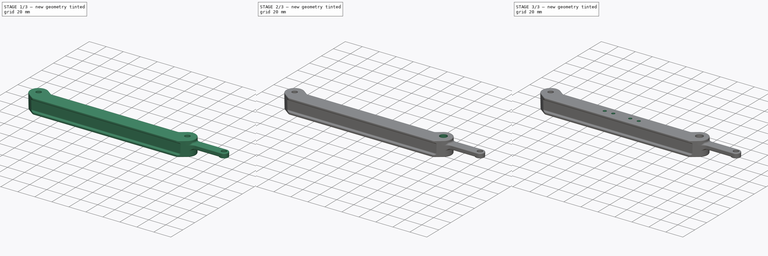
[diagram: build sequence overview — one tinted view per stage of 3, left to right]
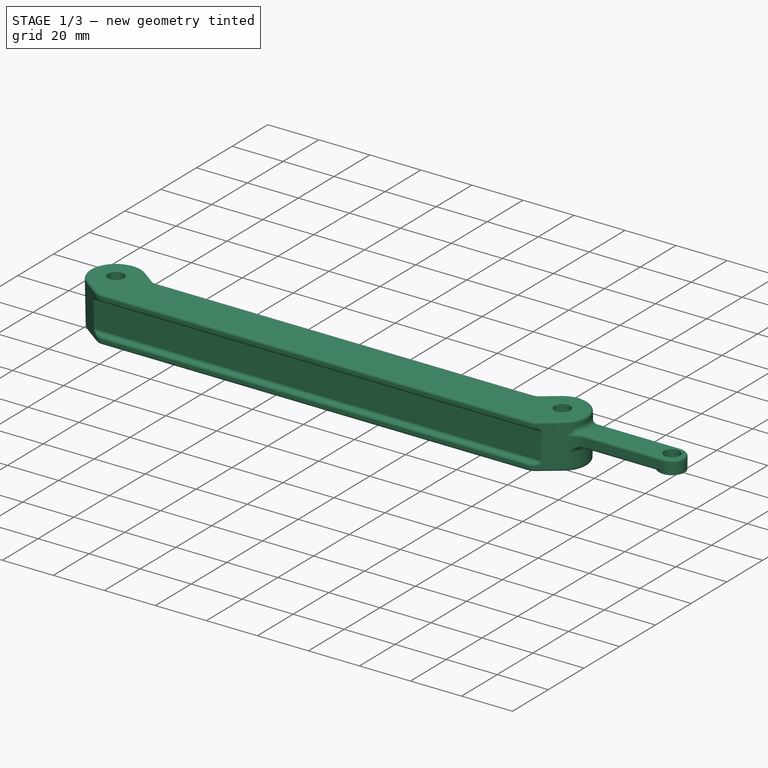
[diagram: stage 1 of 3 — iso view after this stage's code; geometry added in this stage tinted green]
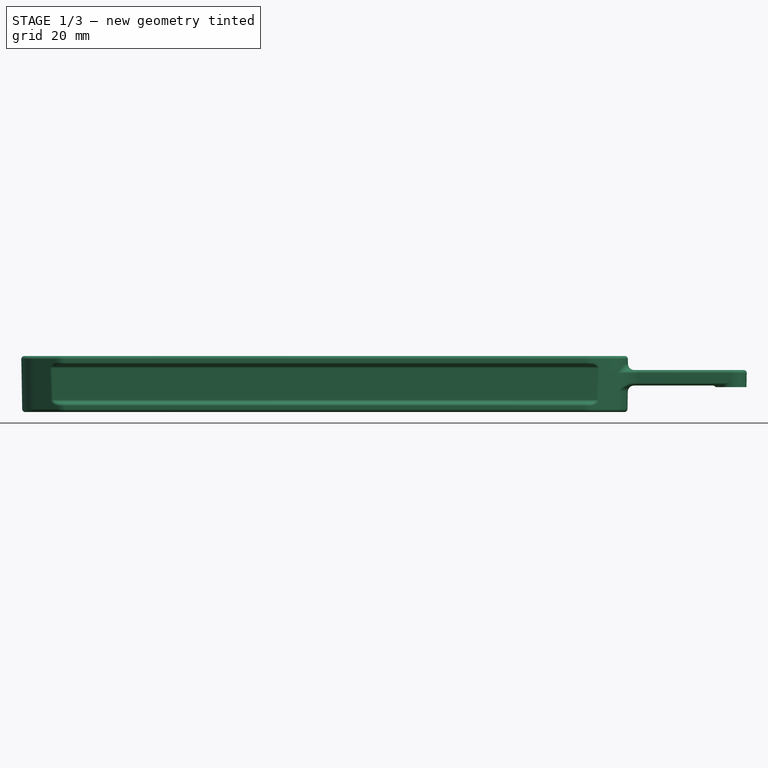
[diagram: stage 1 of 3 — front view after this stage's code; geometry added in this stage tinted green]
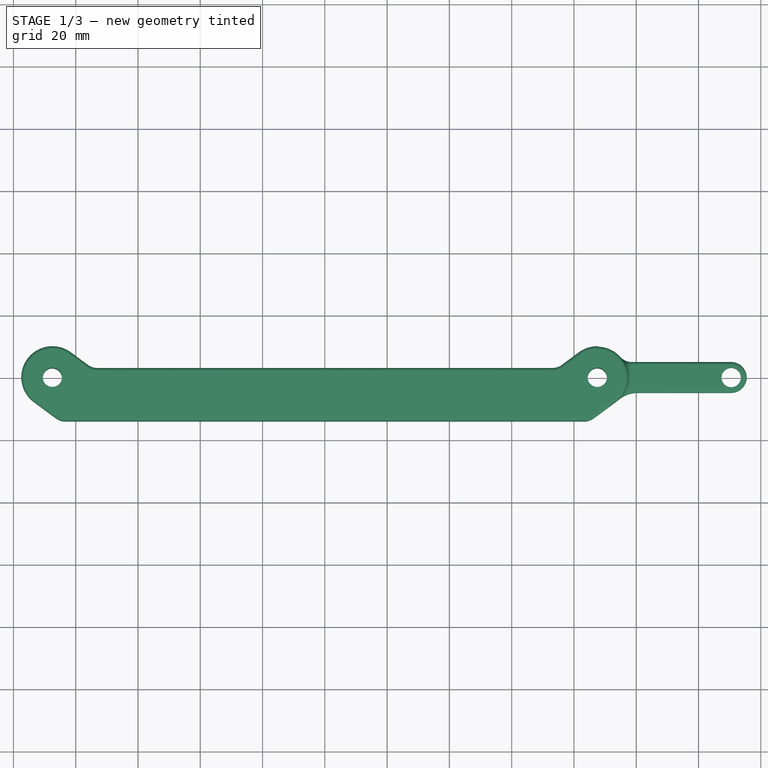
[diagram: stage 1 of 3 — top view after this stage's code; geometry added in this stage tinted green]
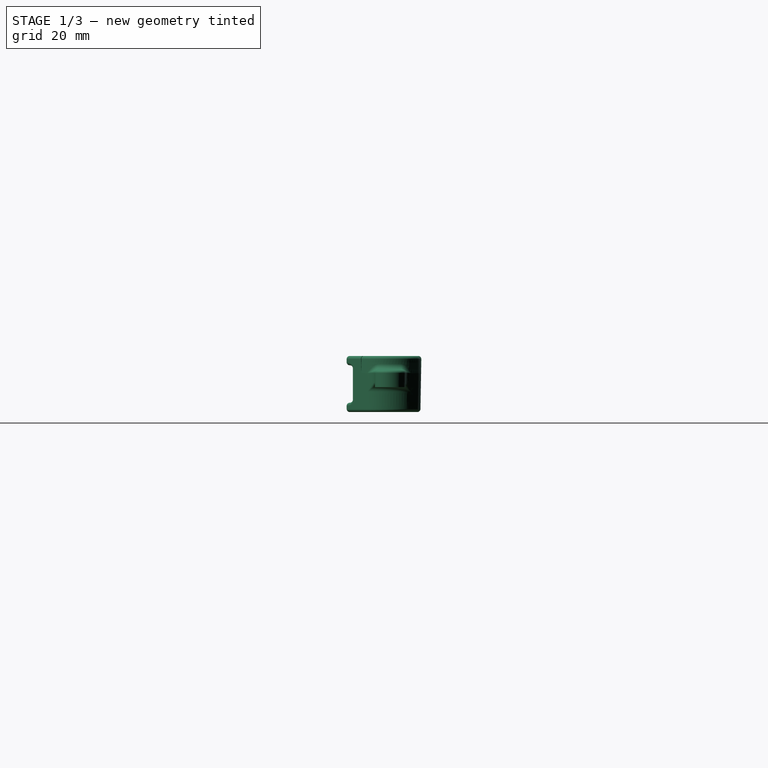
[diagram: stage 1 of 3 — right view after this stage's code; geometry added in this stage tinted green]
FCSTD DOCUMENT  (FreeCAD 0.21R33668 +26 (Git))
Label: link3_1
License: All rights reserved
LicenseURL: https://en.wikipedia.org/wiki/All_rights_reserved
objects: Sketcher::SketchObject×4, PartDesign::Pocket×4, Part::Feature×1, PartDesign::FeatureBase×1, PartDesign::Body×1
note: 15 computed .brp shape members not serialized (recipe doc carries the construction recipe); baked Part::Feature solids carry a one-line shape summary decoded from their .brp

FEATURE [Part::Feature] Part__Feature  label="2205006900-20210110001_4___"
  shape: bbox 234.5 x 27.46 x 18.24 mm, 160 faces (baked)
FEATURE [PartDesign::FeatureBase] BaseFeature
  BaseFeature = -> Part__Feature
FEATURE [Sketcher::SketchObject] Sketch
  ExternalGeometry = -> [BaseFeature]
  FullyConstrained = false
  MapMode = 5
  Placement = pos=(0,0,9) rot=(0,0,1;0rad)
  Support = -> [BaseFeature]
  sketch-geometry (3):
    g0: Circle CenterX=-87.5 CenterY=0 CenterZ=0 NormalX=0 NormalY=0 NormalZ=1 AngleXU=0 Radius=3.075
    g1: Circle CenterX=87.5 CenterY=0 CenterZ=0 NormalX=0 NormalY=0 NormalZ=1 AngleXU=0 Radius=3.1
    g2: Circle CenterX=130.5 CenterY=-4.5e-05 CenterZ=0 NormalX=0 NormalY=0 NormalZ=1 AngleXU=0 Radius=3.1
  constraints (5):
    c: Coincident(g0,g-3)
    c: Diameter(g0) = 6.15
    c: Coincident(g1,g-4)
    c: Diameter(g1) = 6.2
    c: Diameter(g2) = 6.2
FEATURE [PartDesign::Pocket] Pocket
  BaseFeature = -> BaseFeature
  Direction = (0,0,-1)
  Length = 5
  Length2 = 5
  Profile = -> Sketch
  ReferenceAxis = -> Sketch [N_Axis]
  Type = 1
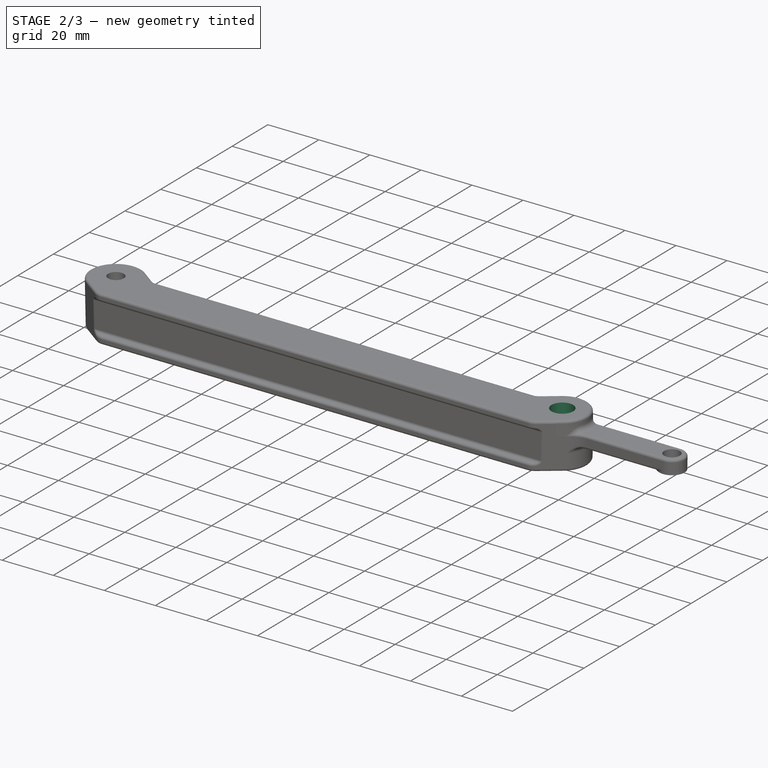
[diagram: stage 2 of 3 — iso view after this stage's code; geometry added in this stage tinted green]
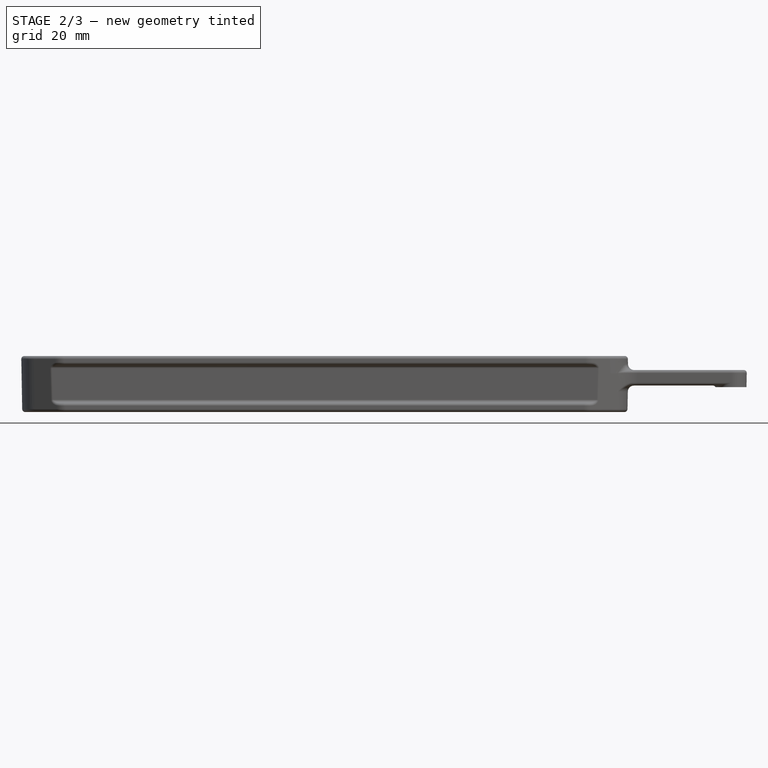
[diagram: stage 2 of 3 — front view after this stage's code; geometry added in this stage tinted green]
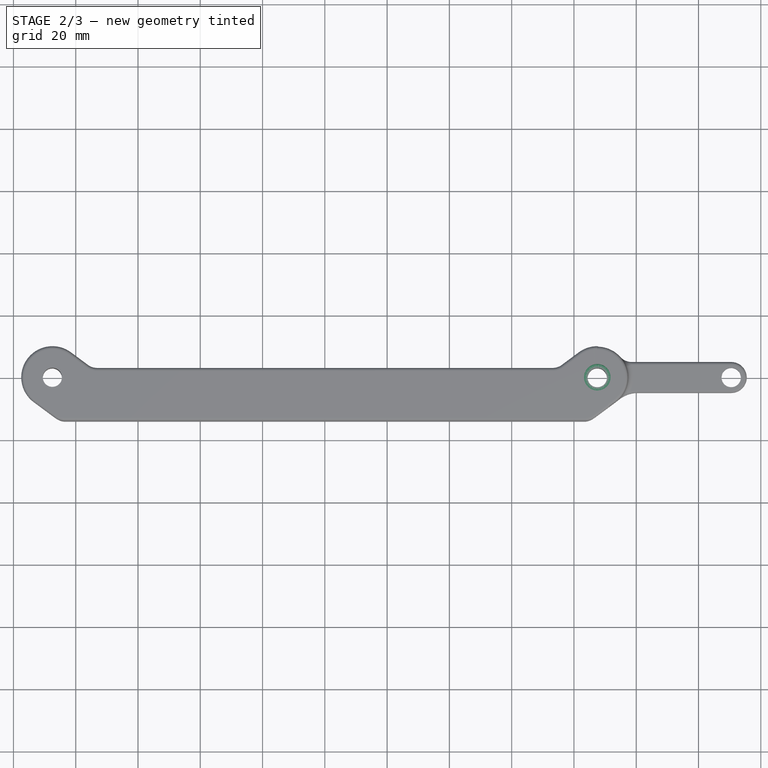
[diagram: stage 2 of 3 — top view after this stage's code; geometry added in this stage tinted green]
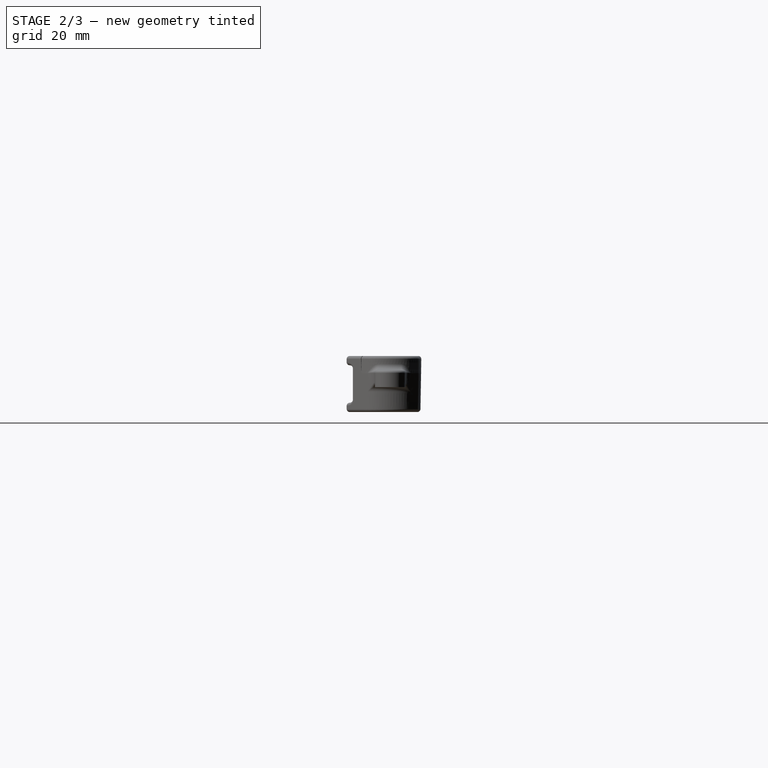
[diagram: stage 2 of 3 — right view after this stage's code; geometry added in this stage tinted green]
FEATURE [Sketcher::SketchObject] Sketch001
  ExternalGeometry = -> [Pocket]
  FullyConstrained = true
  MapMode = 5
  Placement = pos=(0,0,9) rot=(0,0,1;0rad)
  Support = -> [Pocket]
  sketch-geometry (1):
    g0: Circle CenterX=87.5 CenterY=0 CenterZ=0 NormalX=0 NormalY=0 NormalZ=1 AngleXU=0 Radius=4.25
  constraints (2):
    c: Coincident(g0,g-3)
    c: Diameter(g0) = 8.5
FEATURE [PartDesign::Pocket] Pocket001
  BaseFeature = -> Pocket
  Direction = (0,0,-1)
  Length = 5
  Length2 = 5
  Profile = -> Sketch001
  ReferenceAxis = -> Sketch001 [N_Axis]
  Type = 0
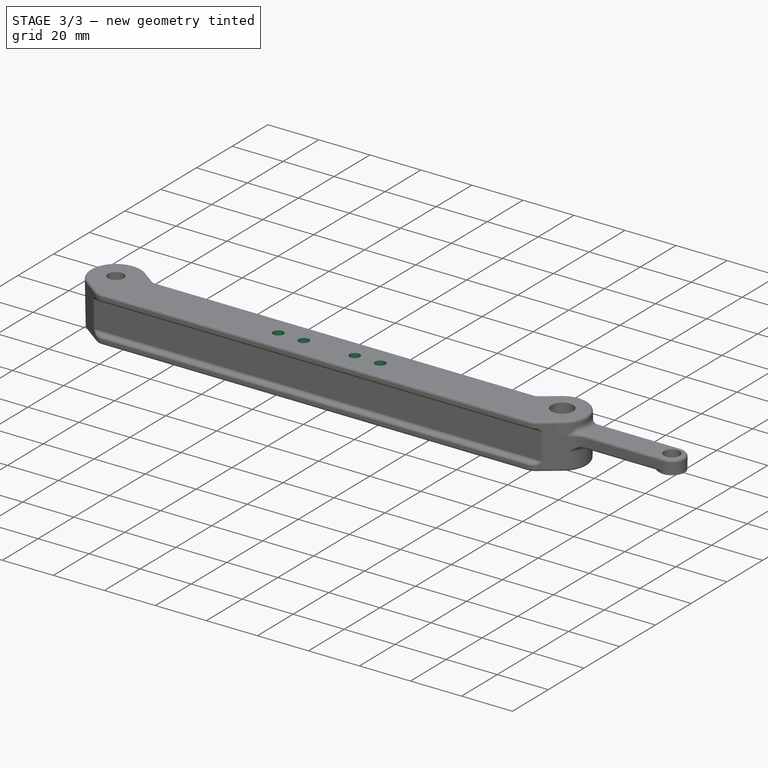
[diagram: stage 3 of 3 — iso view after this stage's code; geometry added in this stage tinted green]
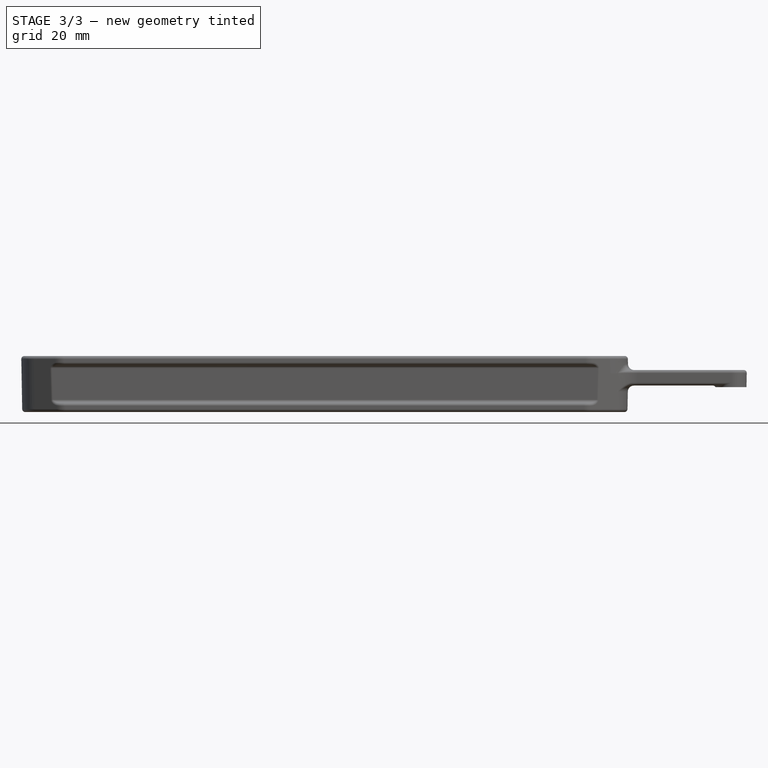
[diagram: stage 3 of 3 — front view after this stage's code; geometry added in this stage tinted green]
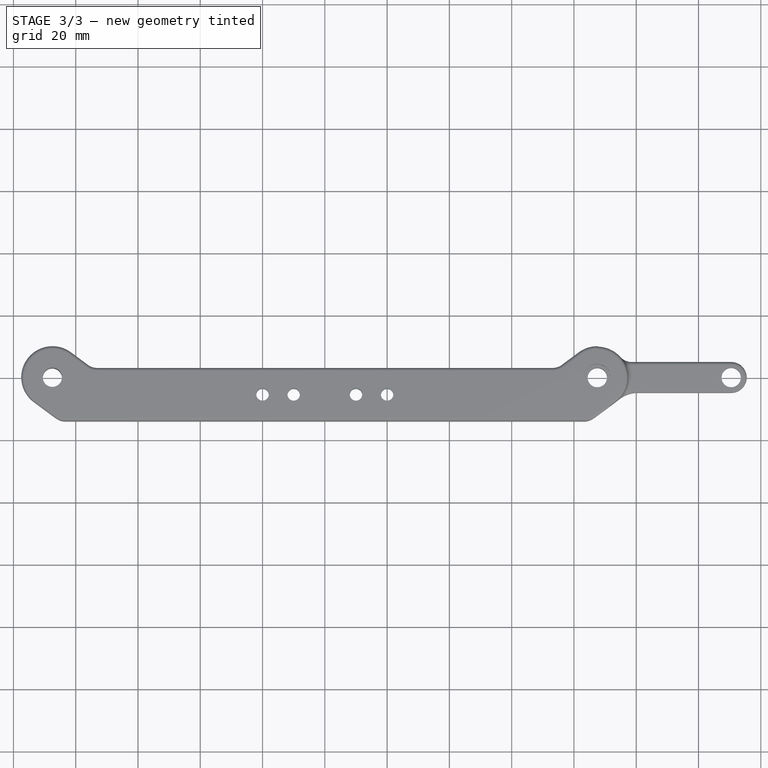
[diagram: stage 3 of 3 — top view after this stage's code; geometry added in this stage tinted green]
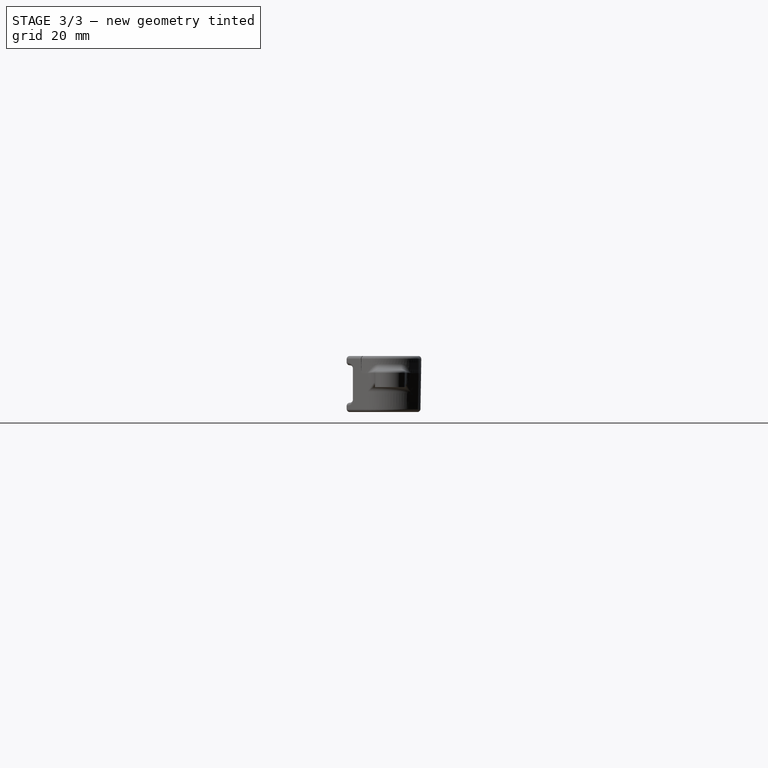
[diagram: stage 3 of 3 — right view after this stage's code; geometry added in this stage tinted green]
FEATURE [Sketcher::SketchObject] Sketch002
  ExternalGeometry = -> [Pocket001]
  FullyConstrained = true
  MapMode = 5
  Placement = pos=(0,0,-9) rot=(1,0,0;3.14159rad)
  Support = -> [Pocket001]
  sketch-geometry (1):
    g0: Circle CenterX=87.5 CenterY=0 CenterZ=0 NormalX=0 NormalY=0 NormalZ=1 AngleXU=0 Radius=4.25
  constraints (2):
    c: Coincident(g0,g-3)
    c: Diameter(g0) = 8.5
FEATURE [PartDesign::Pocket] Pocket002
  BaseFeature = -> Pocket001
  Direction = (0,0,1)
  Length = 5
  Length2 = 5
  Profile = -> Sketch002
  ReferenceAxis = -> Sketch002 [N_Axis]
  Type = 0
FEATURE [Sketcher::SketchObject] Sketch003
  ExternalGeometry = -> [Pocket002]
  FullyConstrained = true
  MapMode = 5
  Placement = pos=(0,0,9) rot=(0,0,1;0rad)
  Support = -> [Pocket002]
  sketch-geometry (4):
    g0: Circle CenterX=10 CenterY=-5.5 CenterZ=0 NormalX=0 NormalY=0 NormalZ=1 AngleXU=0 Radius=2
    g1: Circle CenterX=20 CenterY=-5.5 CenterZ=0 NormalX=0 NormalY=0 NormalZ=1 AngleXU=0 Radius=2
    g2: Circle CenterX=-10 CenterY=-5.5 CenterZ=0 NormalX=0 NormalY=0 NormalZ=1 AngleXU=0 Radius=2
    g3: Circle CenterX=-20 CenterY=-5.5 CenterZ=0 NormalX=0 NormalY=0 NormalZ=1 AngleXU=0 Radius=2
  constraints (13):
    c: DistanceY(g-4,g-3) = 15
    c: Equal(g1,g0)
    c: Equal(g0,g2)
    c: Equal(g2,g3)
    c: Horizontal(g3,g2)
    c: Horizontal(g2,g0)
    c: Horizontal(g0,g1)
    c: Diameter(g1) = 4
    c: DistanceX(g-1,g0) = 10
    c: DistanceX(g-1,g1) = 20
    c: DistanceX(g2,g-1) = 10
    c: DistanceX(g3,g-1) = 20
    c: DistanceY(g0,g-3) = 7.5
FEATURE [PartDesign::Pocket] Pocket003
  BaseFeature = -> Pocket002
  Direction = (0,0,-1)
  Length = 5
  Length2 = 5
  Profile = -> Sketch003
  ReferenceAxis = -> Sketch003 [N_Axis]
  Type = 1
FEATURE [PartDesign::Body] Body
  BaseFeature = -> Part__Feature
  Group = -> [BaseFeature,Sketch,Pocket,Sketch001,Pocket001,Sketch002,Pocket002,Sketch003,Pocket003]
  Origin = -> Origin
  Tip = -> Pocket003
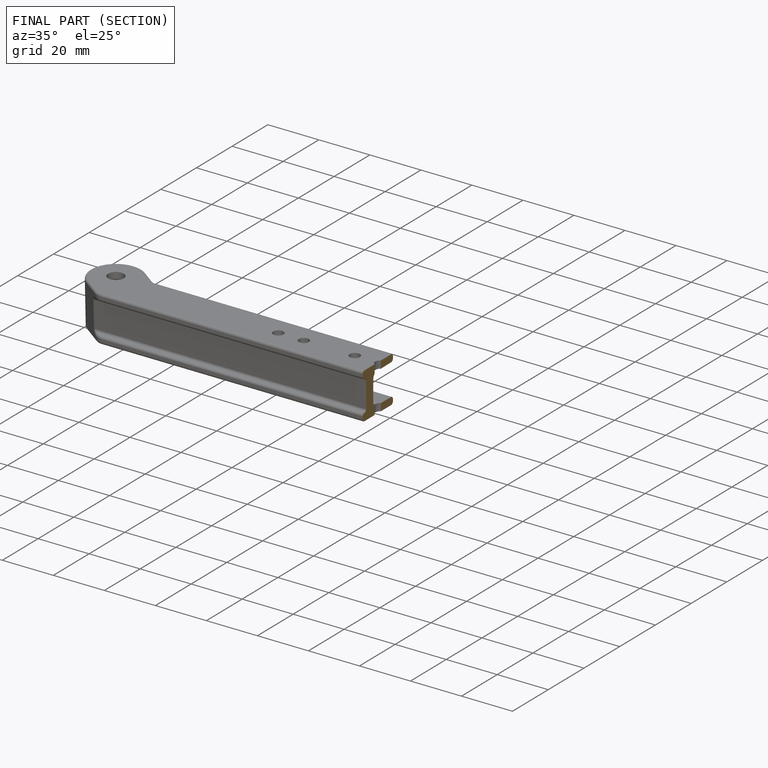
[diagram: finished part — half-section view (interior)]
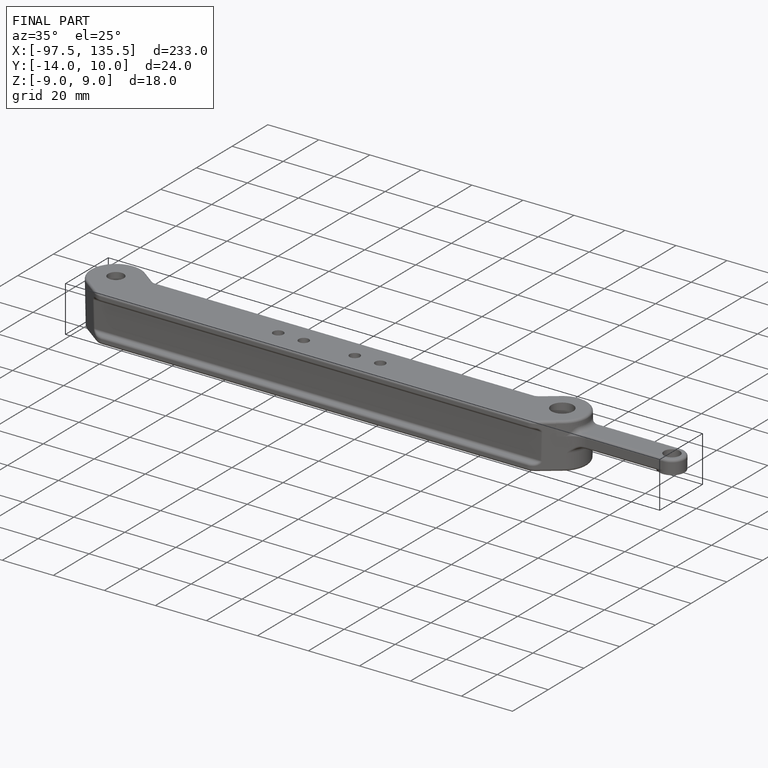
[diagram: finished part — iso view with bounding-box wireframe]
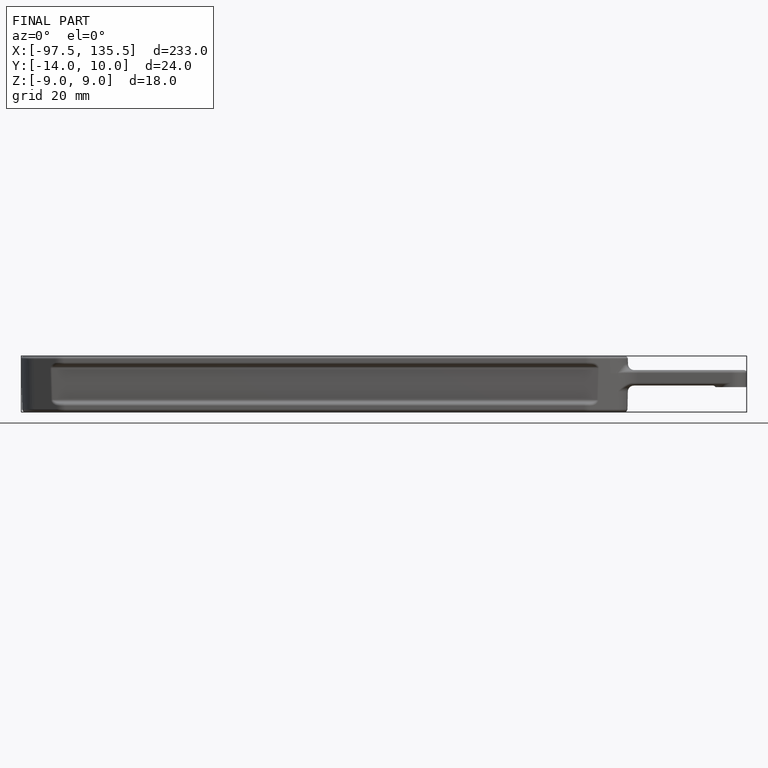
[diagram: finished part — front view with bounding-box wireframe]
